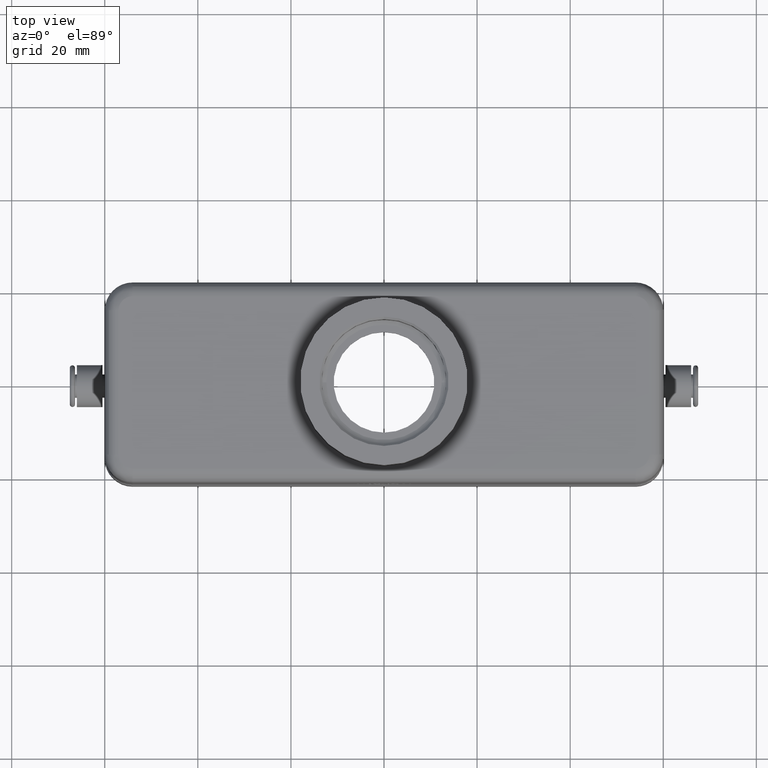
[diagram: clean part render]
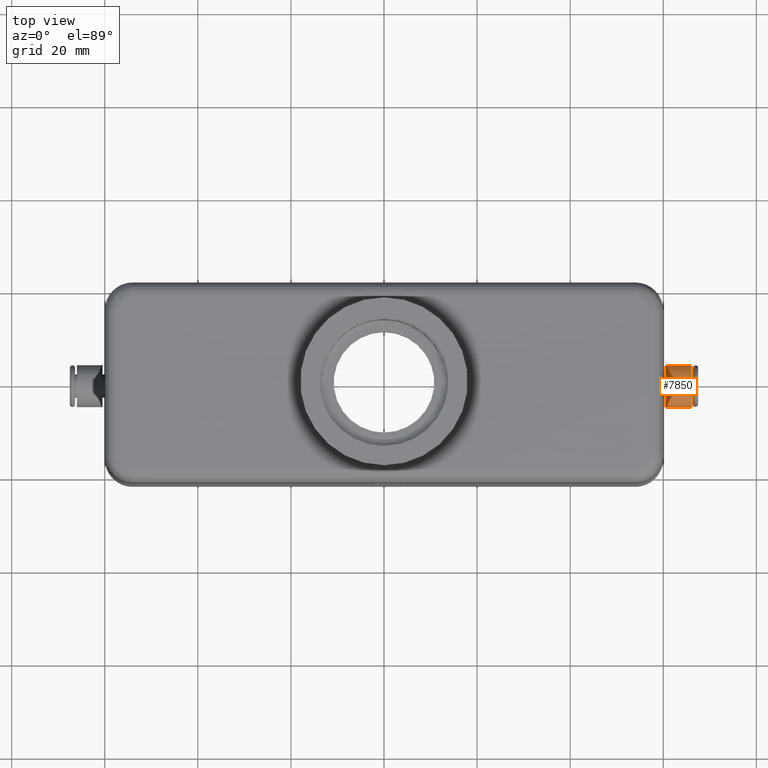
[diagram: same view with one face highlighted and labeled with its STEP entity id]
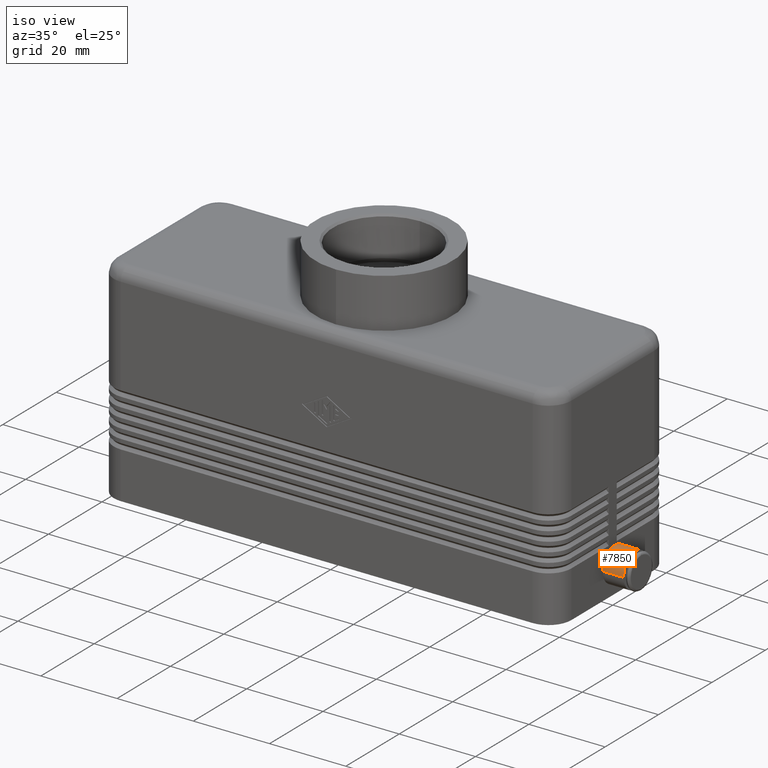
[diagram: same view with one face highlighted and labeled with its STEP entity id]
A machine part, top view. The second image highlights one B-rep face of the part: STEP entity #7850.
A second angle (iso view) of the same face is appended — the face is thin or edge-on in the first view.
In plain terms, the highlighted face is a freeform B-spline surface patch.
Its self-contained STEP definition (entity closure, byte-faithful):
#3693=CARTESIAN_POINT('',(60.500000000000000,-4.500000000000000,7.499999999999999));
#3694=VERTEX_POINT('',#3693);
#3695=CARTESIAN_POINT('',(66.0,-4.500000000000000,7.499999999999999));
#3696=VERTEX_POINT('',#3695);
#3697=CARTESIAN_POINT('',(60.500000000000000,-4.500000000000000,7.499999999999999));
#3698=DIRECTION('',(1.0,0.0,0.0));
#3699=VECTOR('',#3698,5.500000000000000);
#3700=LINE('',#3697,#3699);
#3701=EDGE_CURVE('',#3694,#3696,#3700,.T.);
#3703=CARTESIAN_POINT('',(60.500000000000000,4.500000000000000,7.500000000000000));
#3704=VERTEX_POINT('',#3703);
#3712=CARTESIAN_POINT('',(66.0,4.500000000000000,7.500000000000000));
#3713=VERTEX_POINT('',#3712);
#3714=CARTESIAN_POINT('',(66.0,4.500000000000000,7.500000000000000));
#3715=DIRECTION('',(-1.0,0.0,0.0));
#3716=VECTOR('',#3715,5.500000000000000);
#3717=LINE('',#3714,#3716);
#3718=EDGE_CURVE('',#3713,#3704,#3717,.T.);
#7806=CARTESIAN_POINT('',(60.500000000000000,4.500000000000000,7.499999999999999));
#7807=CARTESIAN_POINT('',(66.0,4.500000000000000,7.499999999999999));
#7808=CARTESIAN_POINT('',(60.500000000000000,4.499999999999998,3.0));
#7809=CARTESIAN_POINT('',(66.0,4.499999999999998,3.0));
#7810=CARTESIAN_POINT('',(60.500000000000000,-8.881784E-016,3.0));
#7811=CARTESIAN_POINT('',(66.0,-8.881784E-016,3.0));
#7812=CARTESIAN_POINT('',(60.500000000000000,-4.500000000000000,3.000000000000002));
#7813=CARTESIAN_POINT('',(66.0,-4.500000000000000,3.000000000000002));
#7814=CARTESIAN_POINT('',(60.500000000000000,-4.500000000000000,7.500000000000001));
#7815=CARTESIAN_POINT('',(66.0,-4.500000000000000,7.500000000000001));
#7816=CARTESIAN_POINT('',(60.500000000000000,-4.499999999999998,12.0));
#7817=CARTESIAN_POINT('',(66.0,-4.499999999999998,12.0));
#7818=CARTESIAN_POINT('',(60.500000000000000,8.881784E-016,12.0));
#7819=CARTESIAN_POINT('',(66.0,8.881784E-016,12.0));
#7820=CARTESIAN_POINT('',(60.500000000000000,4.500000000000000,12.0));
#7821=CARTESIAN_POINT('',(66.0,4.500000000000000,12.0));
#7822=CARTESIAN_POINT('',(60.500000000000000,4.500000000000000,7.499999999999999));
#7823=CARTESIAN_POINT('',(66.0,4.500000000000000,7.499999999999999));
#7831=(BOUNDED_SURFACE()B_SPLINE_SURFACE(1,2,((#7806,#7808,#7810,#7812,#7814,#7816,#7818,#7820,#7822),(#7807,#7809,#7811,#7813,#7815,#7817,#7819,#7821,#7823)),.UNSPECIFIED.,.F.,.T.,.U.)B_SPLINE_SURFACE_WITH_KNOTS((2,2),(3,2,2,2,3),(0.0,1.222222222222222),(0.0,7.068583470577035,14.137166941154069,21.205750411731103,28.274333882308138),.UNSPECIFIED.)GEOMETRIC_REPRESENTATION_ITEM()RATIONAL_B_SPLINE_SURFACE(((1.0,0.707106781186548,1.0,0.707106781186548,1.0,0.707106781186548,1.0,0.707106781186548,1.0),(1.0,0.707106781186548,1.0,0.707106781186548,1.0,0.707106781186548,1.0,0.707106781186548,1.0)))REPRESENTATION_ITEM('')SURFACE());
#7832=ORIENTED_EDGE('',*,*,#3701,.T.);
#7833=CARTESIAN_POINT('',(66.0,0.0,7.500000000000000));
#7834=DIRECTION('',(1.0,0.0,0.0));
#7835=DIRECTION('',(0.0,-1.0,0.0));
#7836=AXIS2_PLACEMENT_3D('',#7833,#7834,#7835);
#7837=CIRCLE('',#7836,4.500000000000000);
#7838=EDGE_CURVE('',#3713,#3696,#7837,.T.);
#7839=ORIENTED_EDGE('',*,*,#7838,.F.);
#7840=ORIENTED_EDGE('',*,*,#3718,.T.);
#7841=CARTESIAN_POINT('',(60.500000000000000,0.0,7.500000000000000));
#7842=DIRECTION('',(-1.0,0.0,0.0));
#7843=DIRECTION('',(0.0,-1.0,0.0));
#7844=AXIS2_PLACEMENT_3D('',#7841,#7842,#7843);
#7845=CIRCLE('',#7844,4.500000000000000);
#7846=EDGE_CURVE('',#3694,#3704,#7845,.T.);
#7847=ORIENTED_EDGE('',*,*,#7846,.F.);
#7848=EDGE_LOOP('',(#7832,#7839,#7840,#7847));
#7849=FACE_OUTER_BOUND('',#7848,.T.);
#7850=ADVANCED_FACE('',(#7849),#7831,.T.);